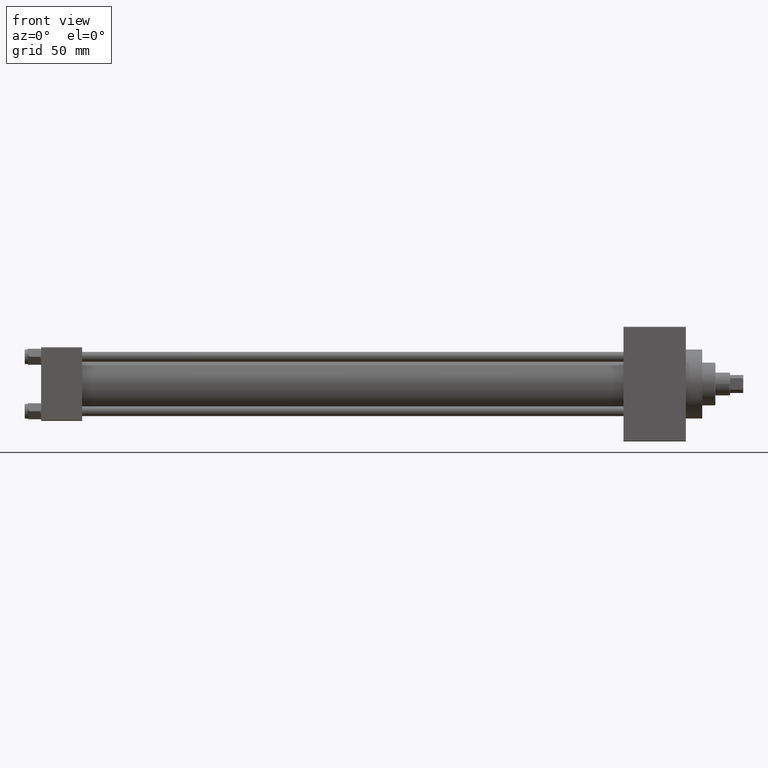
[diagram: clean part render]
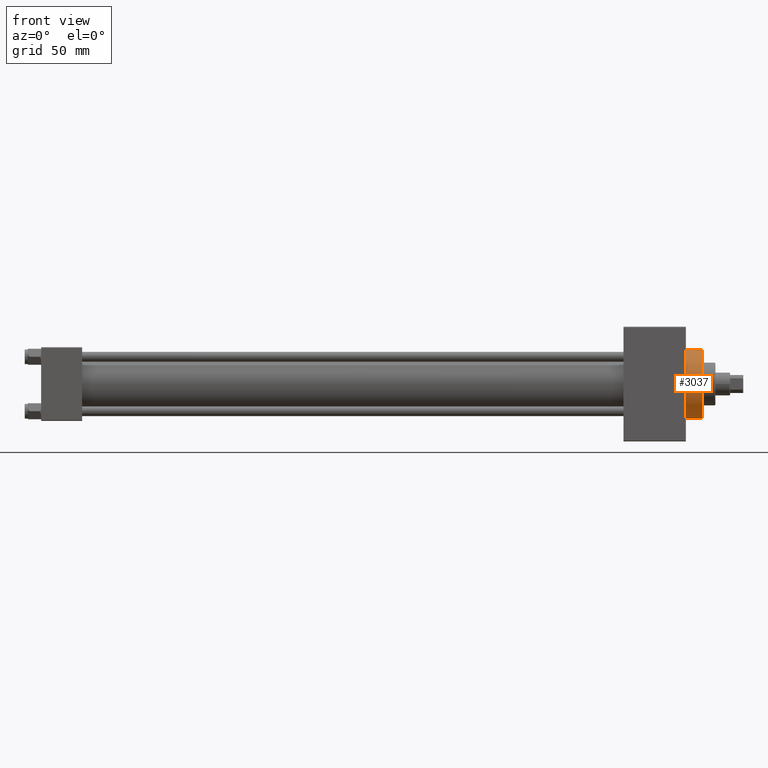
[diagram: same view with one face highlighted and labeled with its STEP entity id]
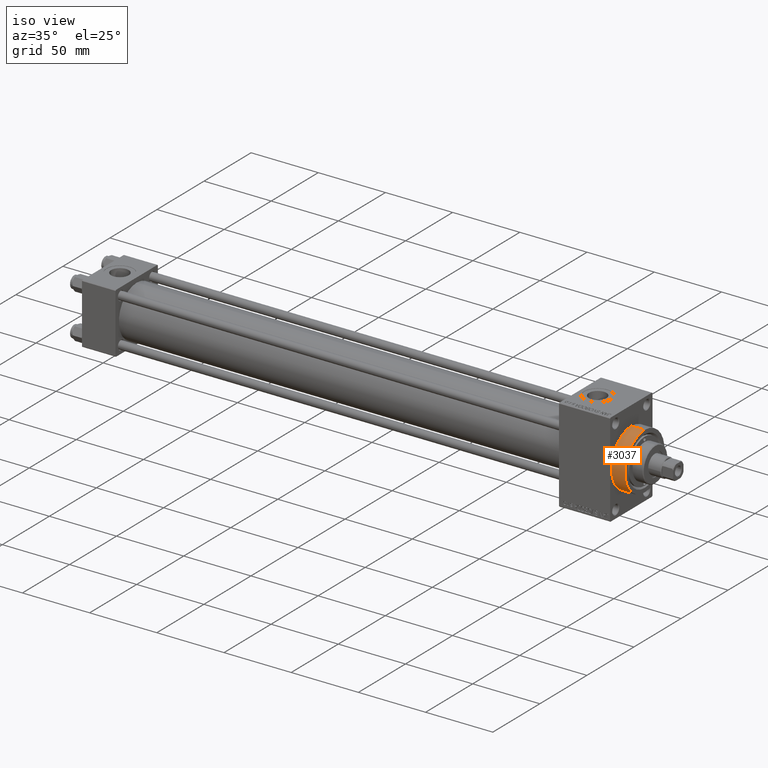
[diagram: same view with one face highlighted and labeled with its STEP entity id]
A machine part, front view. The second image highlights one B-rep face of the part: STEP entity #3037.
A second angle (iso view) of the same face is appended — the face is thin or edge-on in the first view.
In plain terms, the highlighted cylindrical surface (edge-blend (fillet) strip) has radius 21 mm, axis along (-1, -0, -0).
Its self-contained STEP definition (entity closure, byte-faithful):
#2105 = CARTESIAN_POINT ( 'NONE',  ( 403.0000000000000000, 2.571758278209441661E-15, -21.00000000000000000 ) ) ;
#2668 = LINE ( 'NONE', #32772, #7600 ) ;
#3037 = ADVANCED_FACE ( 'NONE', ( #23575 ), #34108, .T. ) ;
#3116 = ORIENTED_EDGE ( 'NONE', *, *, #29006, .F. ) ;
#3166 = DIRECTION ( 'NONE',  ( 0.000000000000000000, 0.000000000000000000, -1.000000000000000000 ) ) ;
#4644 = AXIS2_PLACEMENT_3D ( 'NONE', #28134, #31471, #3166 ) ;
#7600 = VECTOR ( 'NONE', #20661, 1000.000000000000000 ) ;
#8239 = EDGE_CURVE ( 'NONE', #29758, #36392, #35114, .T. ) ;
#8935 = AXIS2_PLACEMENT_3D ( 'NONE', #23652, #40871, #23161 ) ;
#10130 = EDGE_LOOP ( 'NONE', ( #19668, #3116, #15941, #25726 ) ) ;
#10789 = CIRCLE ( 'NONE', #4644, 21.00000000000000000 ) ;
#12297 = CARTESIAN_POINT ( 'NONE',  ( 403.0000000000000000, 0.000000000000000000, 0.000000000000000000 ) ) ;
#12785 = DIRECTION ( 'NONE',  ( -1.000000000000000000, -0.000000000000000000, -0.000000000000000000 ) ) ;
#15941 = ORIENTED_EDGE ( 'NONE', *, *, #8239, .T. ) ;
#16227 = CARTESIAN_POINT ( 'NONE',  ( 393.0000000000000000, 2.571758278209441661E-15, -21.00000000000000000 ) ) ;
#19251 = DIRECTION ( 'NONE',  ( 0.000000000000000000, 0.000000000000000000, 1.000000000000000000 ) ) ;
#19668 = ORIENTED_EDGE ( 'NONE', *, *, #20707, .F. ) ;
#20661 = DIRECTION ( 'NONE',  ( -1.000000000000000000, -0.000000000000000000, -0.000000000000000000 ) ) ;
#20707 = EDGE_CURVE ( 'NONE', #23366, #43884, #2668, .T. ) ;
#20998 = VECTOR ( 'NONE', #39389, 1000.000000000000000 ) ;
#23161 = DIRECTION ( 'NONE',  ( 0.000000000000000000, 0.000000000000000000, -1.000000000000000000 ) ) ;
#23366 = VERTEX_POINT ( 'NONE', #2105 ) ;
#23575 = FACE_OUTER_BOUND ( 'NONE', #10130, .T. ) ;
#23652 = CARTESIAN_POINT ( 'NONE',  ( 393.0000000000000000, 0.000000000000000000, 0.000000000000000000 ) ) ;
#25726 = ORIENTED_EDGE ( 'NONE', *, *, #45211, .T. ) ;
#28134 = CARTESIAN_POINT ( 'NONE',  ( 403.0000000000000000, 0.000000000000000000, 0.000000000000000000 ) ) ;
#29006 = EDGE_CURVE ( 'NONE', #29758, #23366, #10789, .T. ) ;
#29758 = VERTEX_POINT ( 'NONE', #34847 ) ;
#31471 = DIRECTION ( 'NONE',  ( 1.000000000000000000, 0.000000000000000000, 0.000000000000000000 ) ) ;
#31893 = CIRCLE ( 'NONE', #8935, 21.00000000000000000 ) ;
#32218 = CARTESIAN_POINT ( 'NONE',  ( 403.0000000000000000, 0.000000000000000000, 21.00000000000000000 ) ) ;
#32772 = CARTESIAN_POINT ( 'NONE',  ( 403.0000000000000000, 2.571758278209441661E-15, -21.00000000000000000 ) ) ;
#34108 = CYLINDRICAL_SURFACE ( 'NONE', #41443, 21.00000000000000000 ) ;
#34847 = CARTESIAN_POINT ( 'NONE',  ( 403.0000000000000000, 0.000000000000000000, 21.00000000000000000 ) ) ;
#35114 = LINE ( 'NONE', #32218, #20998 ) ;
#36392 = VERTEX_POINT ( 'NONE', #41663 ) ;
#39389 = DIRECTION ( 'NONE',  ( -1.000000000000000000, -0.000000000000000000, -0.000000000000000000 ) ) ;
#40871 = DIRECTION ( 'NONE',  ( 1.000000000000000000, 0.000000000000000000, 0.000000000000000000 ) ) ;
#41443 = AXIS2_PLACEMENT_3D ( 'NONE', #12297, #12785, #19251 ) ;
#41663 = CARTESIAN_POINT ( 'NONE',  ( 393.0000000000000000, 0.000000000000000000, 21.00000000000000000 ) ) ;
#43884 = VERTEX_POINT ( 'NONE', #16227 ) ;
#45211 = EDGE_CURVE ( 'NONE', #36392, #43884, #31893, .T. ) ;